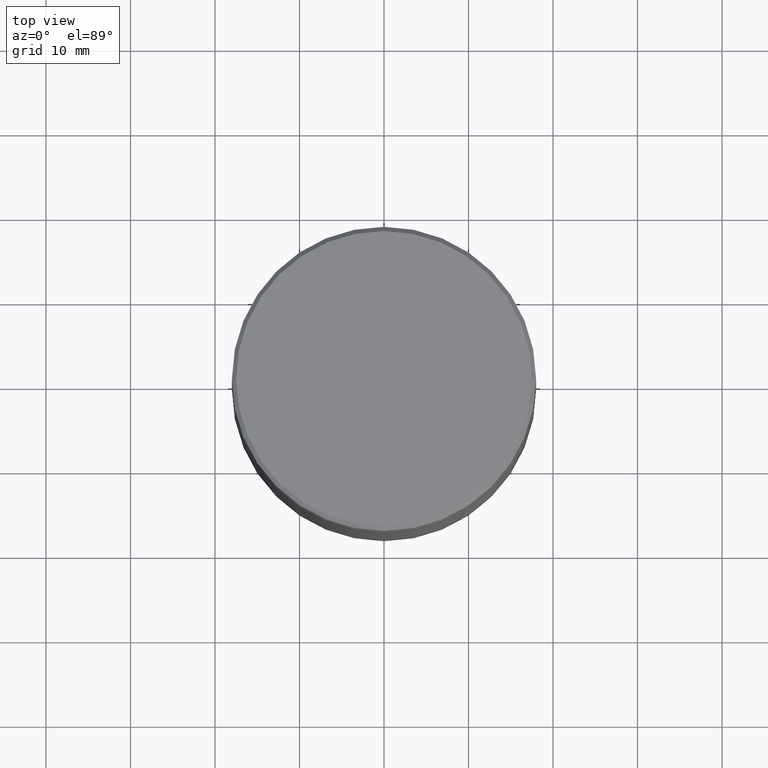
[diagram: clean part render]
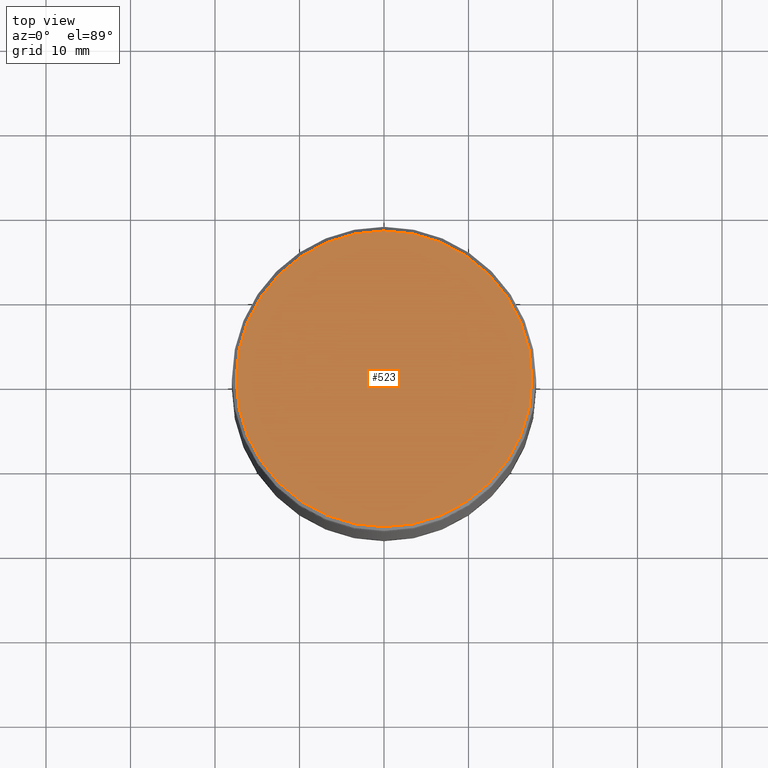
[diagram: same view with one face highlighted and labeled with its STEP entity id]
A machine part, top view. The second image highlights one B-rep face of the part: STEP entity #523.
In plain terms, the highlighted planar face has unit normal (0, -0, 1).
Its self-contained STEP definition (entity closure, byte-faithful):
#56 = DIRECTION ( 'NONE',  ( -0.000000000000000000, -0.000000000000000000, 1.000000000000000000 ) ) ;
#76 = DIRECTION ( 'NONE',  ( 1.000000000000000000, 0.000000000000000000, 0.000000000000000000 ) ) ;
#99 = CARTESIAN_POINT ( 'NONE',  ( -17.49999999999998934, 0.000000000000000000, 0.000000000000000000 ) ) ;
#100 = VERTEX_POINT ( 'NONE', #99 ) ;
#128 = CIRCLE ( 'NONE', #332, 17.49999999999998934 ) ;
#144 = CARTESIAN_POINT ( 'NONE',  ( 17.49999999999998934, 2.173748068486550852E-15, 0.000000000000000000 ) ) ;
#161 = ORIENTED_EDGE ( 'NONE', *, *, #489, .T. ) ;
#168 = VERTEX_POINT ( 'NONE', #144 ) ;
#213 = FACE_OUTER_BOUND ( 'NONE', #271, .T. ) ;
#237 = DIRECTION ( 'NONE',  ( 1.000000000000000000, 0.000000000000000000, 0.000000000000000000 ) ) ;
#255 = DIRECTION ( 'NONE',  ( 1.000000000000000000, 0.000000000000000000, 0.000000000000000000 ) ) ;
#260 = EDGE_CURVE ( 'NONE', #100, #168, #128, .T. ) ;
#261 = PLANE ( 'NONE',  #520 ) ;
#271 = EDGE_LOOP ( 'NONE', ( #363, #161 ) ) ;
#332 = AXIS2_PLACEMENT_3D ( 'NONE', #398, #56, #237 ) ;
#363 = ORIENTED_EDGE ( 'NONE', *, *, #260, .T. ) ;
#378 = CARTESIAN_POINT ( 'NONE',  ( 0.000000000000000000, 0.000000000000000000, 0.000000000000000000 ) ) ;
#398 = CARTESIAN_POINT ( 'NONE',  ( 0.000000000000000000, 0.000000000000000000, 0.000000000000000000 ) ) ;
#433 = DIRECTION ( 'NONE',  ( 0.000000000000000000, -0.000000000000000000, 1.000000000000000000 ) ) ;
#472 = DIRECTION ( 'NONE',  ( -0.000000000000000000, -0.000000000000000000, 1.000000000000000000 ) ) ;
#475 = AXIS2_PLACEMENT_3D ( 'NONE', #476, #472, #76 ) ;
#476 = CARTESIAN_POINT ( 'NONE',  ( 0.000000000000000000, 0.000000000000000000, 0.000000000000000000 ) ) ;
#489 = EDGE_CURVE ( 'NONE', #168, #100, #558, .T. ) ;
#520 = AXIS2_PLACEMENT_3D ( 'NONE', #378, #433, #255 ) ;
#523 = ADVANCED_FACE ( 'NONE', ( #213 ), #261, .T. ) ;
#558 = CIRCLE ( 'NONE', #475, 17.49999999999998934 ) ;